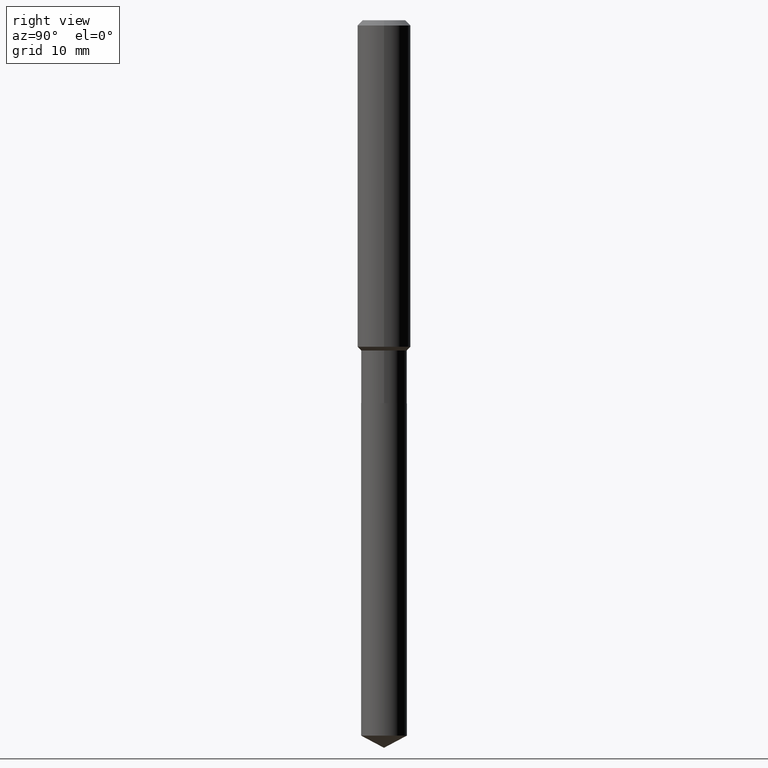
[diagram: clean part render]
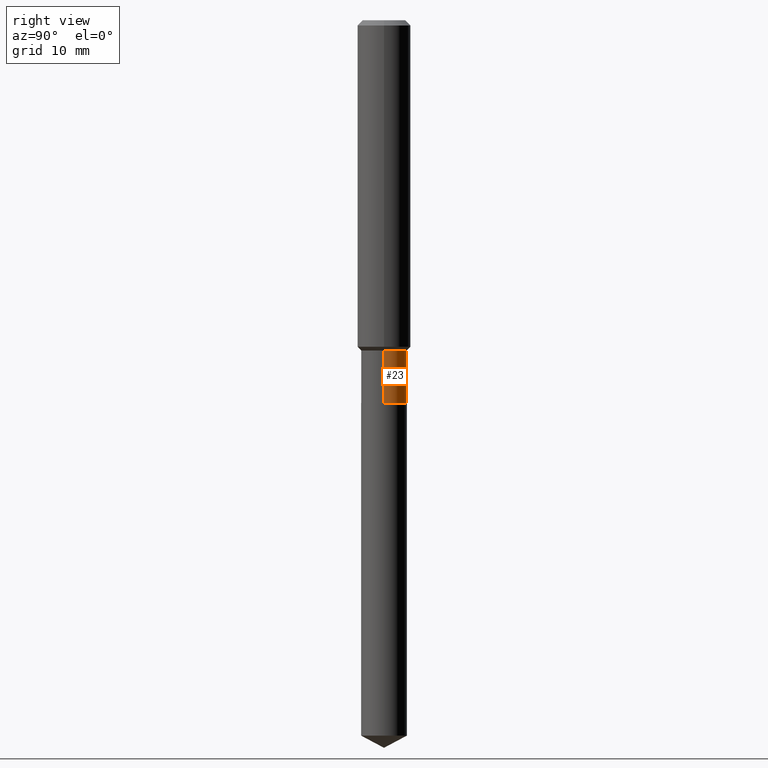
[diagram: same view with one face highlighted and labeled with its STEP entity id]
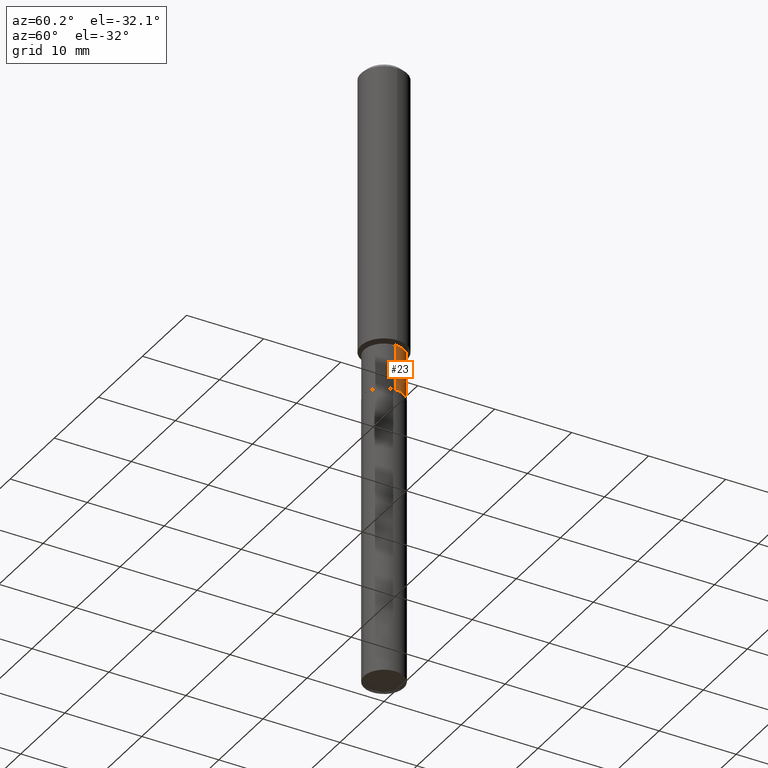
[diagram: same view with one face highlighted and labeled with its STEP entity id]
A machine part, right view. The second image highlights one B-rep face of the part: STEP entity #23.
A second angle (auxiliary view) of the same face is appended — the face is thin or edge-on in the first view.
In plain terms, the highlighted cylindrical surface (edge-blend (fillet) strip) has radius 2.5794 mm, axis along (-0, 0, 1).
Its self-contained STEP definition (entity closure, byte-faithful):
#23 = ADVANCED_FACE ( 'NONE', ( #54 ), #163, .T. ) ;
#31 = EDGE_CURVE ( 'NONE', #77, #254, #470, .T. ) ;
#44 = AXIS2_PLACEMENT_3D ( 'NONE', #136, #286, #322 ) ;
#52 = LINE ( 'NONE', #395, #117 ) ;
#54 = FACE_OUTER_BOUND ( 'NONE', #400, .T. ) ;
#64 = CIRCLE ( 'NONE', #403, 0.1015500000000000014 ) ;
#77 = VERTEX_POINT ( 'NONE', #98 ) ;
#78 = DIRECTION ( 'NONE',  ( -2.445468806185136597E-29, 3.491481338843145583E-15, 1.000000000000000000 ) ) ;
#90 = CARTESIAN_POINT ( 'NONE',  ( 0.1015499999999999736, -5.825885761993670479E-15, -1.465500000000000247 ) ) ;
#98 = CARTESIAN_POINT ( 'NONE',  ( 0.1015500000000000014, -6.639750062078007786E-15, -1.698600000000000332 ) ) ;
#117 = VECTOR ( 'NONE', #158, 39.37007874015748143 ) ;
#122 = ORIENTED_EDGE ( 'NONE', *, *, #240, .F. ) ;
#124 = CARTESIAN_POINT ( 'NONE',  ( 4.153873314186073379E-29, -5.930630202158967793E-15, -1.698600000000000332 ) ) ;
#125 = ORIENTED_EDGE ( 'NONE', *, *, #31, .F. ) ;
#131 = DIRECTION ( 'NONE',  ( -2.445468806185136597E-29, 3.491481338843145583E-15, 1.000000000000000000 ) ) ;
#136 = CARTESIAN_POINT ( 'NONE',  ( 0.000000000000000000, 0.000000000000000000, 0.000000000000000000 ) ) ;
#158 = DIRECTION ( 'NONE',  ( -2.445468806185136877E-29, 3.491481338843145188E-15, 1.000000000000000000 ) ) ;
#163 = CYLINDRICAL_SURFACE ( 'NONE', #44, 0.1015499999999999875 ) ;
#165 = CARTESIAN_POINT ( 'NONE',  ( -0.1015500000000000014, -4.802141903952417194E-15, -1.698600000000000332 ) ) ;
#190 = DIRECTION ( 'NONE',  ( 1.000000000000000000, -6.982962677686264344E-15, 0.000000000000000000 ) ) ;
#199 = CARTESIAN_POINT ( 'NONE',  ( 3.583834535464318409E-29, -5.116765902074630486E-15, -1.465500000000000247 ) ) ;
#232 = ORIENTED_EDGE ( 'NONE', *, *, #312, .T. ) ;
#240 = EDGE_CURVE ( 'NONE', #254, #468, #337, .T. ) ;
#247 = CARTESIAN_POINT ( 'NONE',  ( 0.1015499999999999875, -7.091198599190402890E-16, 4.951757515820772372E-30 ) ) ;
#254 = VERTEX_POINT ( 'NONE', #90 ) ;
#259 = ORIENTED_EDGE ( 'NONE', *, *, #289, .T. ) ;
#282 = DIRECTION ( 'NONE',  ( 1.000000000000000000, -6.982962677686266711E-15, 0.000000000000000000 ) ) ;
#286 = DIRECTION ( 'NONE',  ( -2.445468806185136597E-29, 3.491481338843145583E-15, 1.000000000000000000 ) ) ;
#289 = EDGE_CURVE ( 'NONE', #463, #468, #52, .T. ) ;
#290 = DIRECTION ( 'NONE',  ( -2.445468806185136877E-29, 3.491481338843145188E-15, 1.000000000000000000 ) ) ;
#292 = AXIS2_PLACEMENT_3D ( 'NONE', #199, #78, #282 ) ;
#312 = EDGE_CURVE ( 'NONE', #77, #463, #64, .T. ) ;
#322 = DIRECTION ( 'NONE',  ( 1.000000000000000000, -6.982962677686266711E-15, 4.876176775795935793E-29 ) ) ;
#337 = CIRCLE ( 'NONE', #292, 0.1015499999999999736 ) ;
#360 = CARTESIAN_POINT ( 'NONE',  ( -0.1015499999999999736, -4.802141903952417194E-15, -1.465500000000000247 ) ) ;
#395 = CARTESIAN_POINT ( 'NONE',  ( -0.1015499999999999875, 7.215561481643816499E-16, -4.995178584153856401E-30 ) ) ;
#400 = EDGE_LOOP ( 'NONE', ( #232, #259, #122, #125 ) ) ;
#401 = VECTOR ( 'NONE', #290, 39.37007874015748143 ) ;
#403 = AXIS2_PLACEMENT_3D ( 'NONE', #124, #131, #190 ) ;
#463 = VERTEX_POINT ( 'NONE', #165 ) ;
#468 = VERTEX_POINT ( 'NONE', #360 ) ;
#470 = LINE ( 'NONE', #247, #401 ) ;